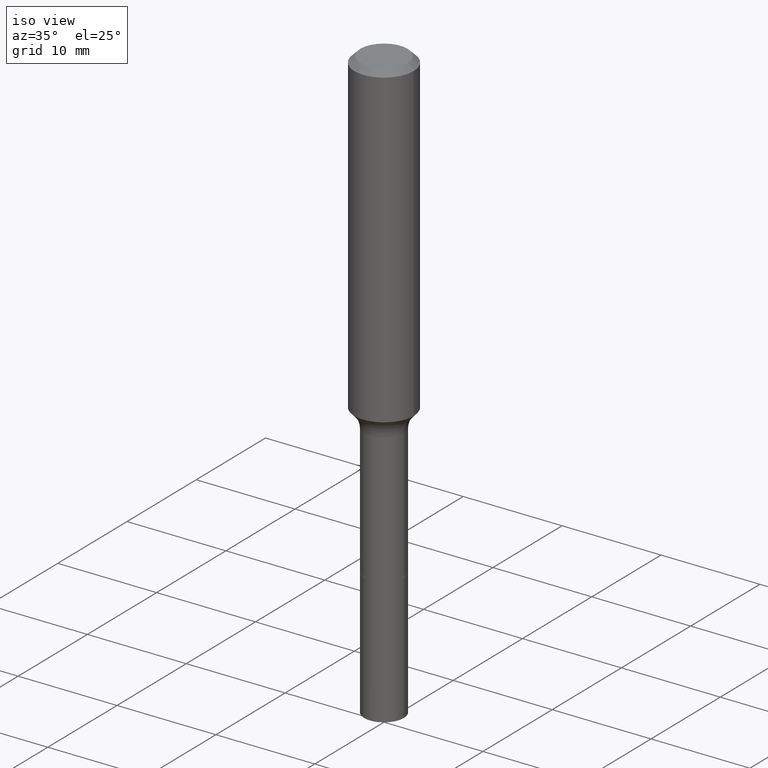
[diagram: clean part render]
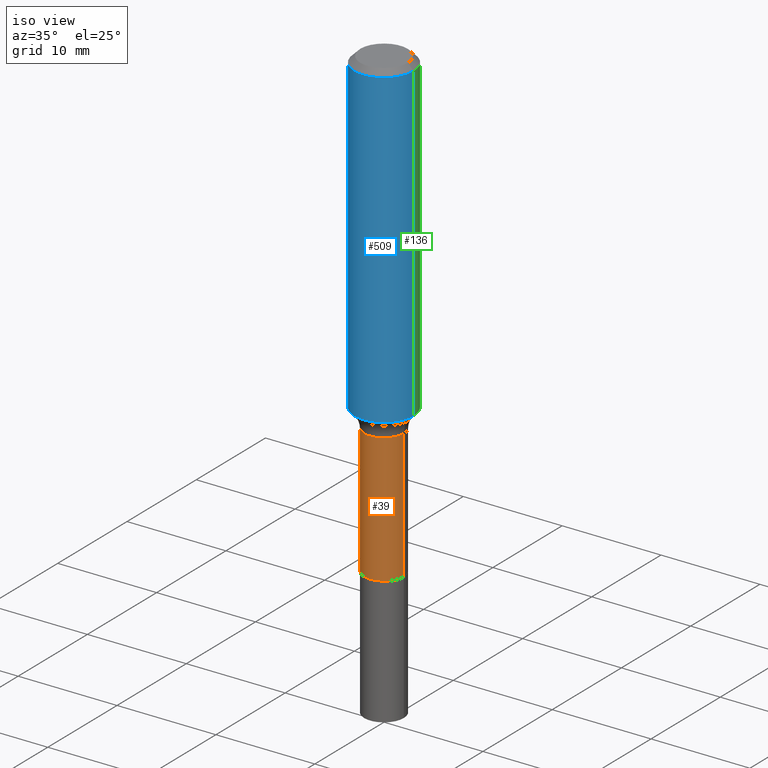
[diagram: same view with three faces highlighted in distinct colors, each labeled with its STEP entity id]
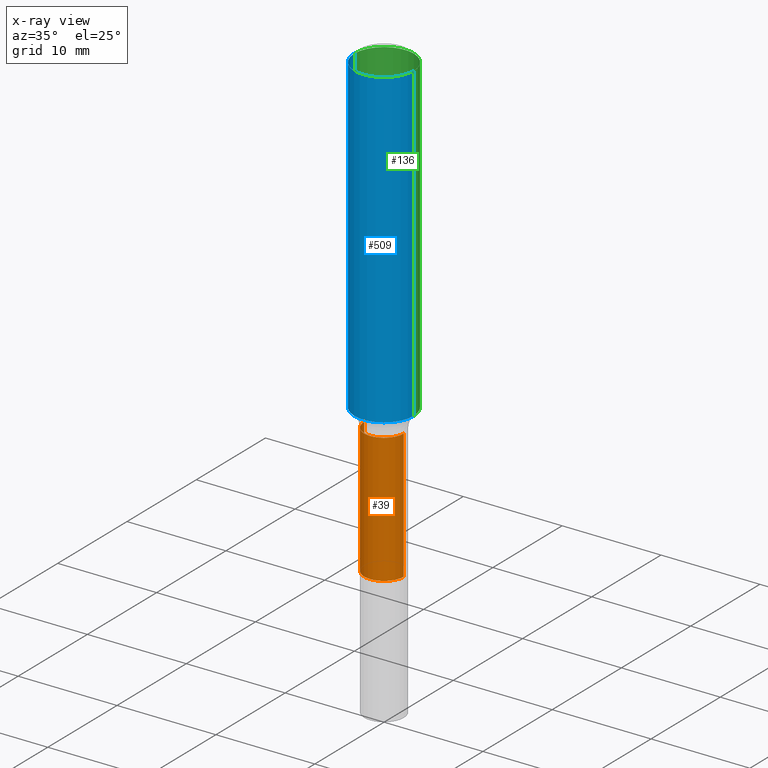
[diagram: x-ray of the same camera — body ghosted, the three highlighted faces saturated]
A machine part, iso view with three faces highlighted in distinct colors.
The next image is the same camera in x-ray (body ghosted, the three faces saturated) — at least one of them is partly hidden behind the body in this view.
Their STEP definitions:

[orange] entity #39 — the highlighted cylindrical surface (edge-blend (fillet) strip) has radius 2.0002 mm, axis along (-0, 0, 1).
#1 = ORIENTED_EDGE ( 'NONE', *, *, #395, .T. ) ;
#6 = DIRECTION ( 'NONE',  ( -2.445468806185136597E-29, 3.491481338843145583E-15, 1.000000000000000000 ) ) ;
#20 = AXIS2_PLACEMENT_3D ( 'NONE', #41, #235, #472 ) ;
#25 = VERTEX_POINT ( 'NONE', #310 ) ;
#39 = ADVANCED_FACE ( 'NONE', ( #203 ), #345, .T. ) ;
#41 = CARTESIAN_POINT ( 'NONE',  ( 0.000000000000000000, 0.000000000000000000, 0.000000000000000000 ) ) ;
#43 = ORIENTED_EDGE ( 'NONE', *, *, #482, .F. ) ;
#45 = CARTESIAN_POINT ( 'NONE',  ( -0.07874999999999994504, 5.595524044110785059E-16, -3.873661383575735690E-30 ) ) ;
#51 = CARTESIAN_POINT ( 'NONE',  ( 0.07875000000000000056, -7.022067268681332845E-15, -1.853700000000000125 ) ) ;
#59 = ORIENTED_EDGE ( 'NONE', *, *, #292, .F. ) ;
#66 = EDGE_CURVE ( 'NONE', #25, #297, #473, .T. ) ;
#81 = LINE ( 'NONE', #45, #226 ) ;
#94 = DIRECTION ( 'NONE',  ( 1.000000000000000000, -6.982962677686269866E-15, 0.000000000000000000 ) ) ;
#110 = VECTOR ( 'NONE', #127, 39.37007874015748143 ) ;
#127 = DIRECTION ( 'NONE',  ( -2.445468806185136877E-29, 3.491481338843145188E-15, 1.000000000000000000 ) ) ;
#168 = CARTESIAN_POINT ( 'NONE',  ( 0.07874999999999991729, -5.222208638507690091E-15, -1.338200000000000056 ) ) ;
#180 = CARTESIAN_POINT ( 'NONE',  ( 3.272526356436949336E-29, -4.672300327639896745E-15, -1.338200000000000056 ) ) ;
#184 = CIRCLE ( 'NONE', #195, 0.07874999999999991729 ) ;
#195 = AXIS2_PLACEMENT_3D ( 'NONE', #180, #377, #94 ) ;
#203 = FACE_OUTER_BOUND ( 'NONE', #420, .T. ) ;
#226 = VECTOR ( 'NONE', #402, 39.37007874015748143 ) ;
#235 = DIRECTION ( 'NONE',  ( -2.445468806185136597E-29, 3.491481338843145583E-15, 1.000000000000000000 ) ) ;
#268 = VERTEX_POINT ( 'NONE', #168 ) ;
#292 = EDGE_CURVE ( 'NONE', #25, #339, #81, .T. ) ;
#293 = LINE ( 'NONE', #481, #110 ) ;
#297 = VERTEX_POINT ( 'NONE', #51 ) ;
#310 = CARTESIAN_POINT ( 'NONE',  ( -0.07875000000000000056, -5.012677238315638137E-15, -1.853700000000000125 ) ) ;
#317 = AXIS2_PLACEMENT_3D ( 'NONE', #518, #6, #439 ) ;
#339 = VERTEX_POINT ( 'NONE', #445 ) ;
#345 = CYLINDRICAL_SURFACE ( 'NONE', #20, 0.07874999999999994504 ) ;
#377 = DIRECTION ( 'NONE',  ( -2.445468806185136597E-29, 3.491481338843145583E-15, 1.000000000000000000 ) ) ;
#395 = EDGE_CURVE ( 'NONE', #297, #268, #293, .T. ) ;
#402 = DIRECTION ( 'NONE',  ( -2.445468806185136877E-29, 3.491481338843145188E-15, 1.000000000000000000 ) ) ;
#420 = EDGE_LOOP ( 'NONE', ( #59, #437, #1, #43 ) ) ;
#437 = ORIENTED_EDGE ( 'NONE', *, *, #66, .T. ) ;
#439 = DIRECTION ( 'NONE',  ( 1.000000000000000000, -6.982962677686261977E-15, 0.000000000000000000 ) ) ;
#445 = CARTESIAN_POINT ( 'NONE',  ( -0.07874999999999991729, -5.012677238315638926E-15, -1.338200000000000056 ) ) ;
#472 = DIRECTION ( 'NONE',  ( 1.000000000000000000, -6.982962677686266711E-15, 4.876176775795935793E-29 ) ) ;
#473 = CIRCLE ( 'NONE', #317, 0.07875000000000000056 ) ;
#481 = CARTESIAN_POINT ( 'NONE',  ( 0.07874999999999994504, -5.499083108677931485E-16, 3.839989210939296915E-30 ) ) ;
#482 = EDGE_CURVE ( 'NONE', #339, #268, #184, .T. ) ;
#518 = CARTESIAN_POINT ( 'NONE',  ( 4.533165526025388314E-29, -6.472158957813539500E-15, -1.853700000000000125 ) ) ;

[blue] entity #509 — the highlighted cylindrical surface (edge-blend (fillet) strip) has radius 2.9997 mm, axis along (-0, 0, 1).
#10 = EDGE_CURVE ( 'NONE', #408, #178, #84, .T. ) ;
#29 = CARTESIAN_POINT ( 'NONE',  ( 0.1180999999999999966, -9.071566814582237199E-16, -0.02362000000000014435 ) ) ;
#30 = EDGE_CURVE ( 'NONE', #508, #135, #196, .T. ) ;
#34 = DIRECTION ( 'NONE',  ( 1.000000000000000000, -6.982962677686264344E-15, 0.000000000000000000 ) ) ;
#36 = DIRECTION ( 'NONE',  ( -2.445468806185136597E-29, 3.491481338843145583E-15, 1.000000000000000000 ) ) ;
#46 = DIRECTION ( 'NONE',  ( -2.445468806185136877E-29, 3.491481338843145188E-15, 1.000000000000000000 ) ) ;
#52 = CIRCLE ( 'NONE', #511, 0.1181000000000001493 ) ;
#63 = VECTOR ( 'NONE', #161, 39.37007874015748143 ) ;
#72 = EDGE_CURVE ( 'NONE', #508, #408, #52, .T. ) ;
#84 = LINE ( 'NONE', #434, #63 ) ;
#97 = DIRECTION ( 'NONE',  ( 1.000000000000000000, -6.982962677686266711E-15, 4.876176775795936353E-29 ) ) ;
#135 = VERTEX_POINT ( 'NONE', #189 ) ;
#145 = EDGE_LOOP ( 'NONE', ( #187, #352, #341, #179 ) ) ;
#146 = CARTESIAN_POINT ( 'NONE',  ( 5.776197320209328408E-31, -8.246878922347560526E-17, -0.02362000000000014435 ) ) ;
#156 = CARTESIAN_POINT ( 'NONE',  ( 3.092269513578415499E-29, -4.414941329051343156E-15, -1.264489453211333325 ) ) ;
#161 = DIRECTION ( 'NONE',  ( -2.445468806185136877E-29, 3.491481338843145188E-15, 1.000000000000000000 ) ) ;
#172 = VECTOR ( 'NONE', #46, 39.37007874015748143 ) ;
#178 = VERTEX_POINT ( 'NONE', #29 ) ;
#179 = ORIENTED_EDGE ( 'NONE', *, *, #232, .F. ) ;
#187 = ORIENTED_EDGE ( 'NONE', *, *, #30, .F. ) ;
#189 = CARTESIAN_POINT ( 'NONE',  ( -0.1180999999999999966, -1.409554088204729926E-15, -0.02362000000000014435 ) ) ;
#196 = LINE ( 'NONE', #469, #172 ) ;
#217 = CARTESIAN_POINT ( 'NONE',  ( -0.1181000000000001493, -3.575790358118663381E-15, -1.264489453211333325 ) ) ;
#219 = AXIS2_PLACEMENT_3D ( 'NONE', #418, #460, #97 ) ;
#232 = EDGE_CURVE ( 'NONE', #135, #178, #250, .T. ) ;
#234 = AXIS2_PLACEMENT_3D ( 'NONE', #146, #306, #424 ) ;
#250 = CIRCLE ( 'NONE', #234, 0.1180999999999999966 ) ;
#285 = CARTESIAN_POINT ( 'NONE',  ( 0.1181000000000001493, -5.239629221286092997E-15, -1.264489453211333325 ) ) ;
#306 = DIRECTION ( 'NONE',  ( -2.445468806185136597E-29, 3.491481338843145583E-15, 1.000000000000000000 ) ) ;
#341 = ORIENTED_EDGE ( 'NONE', *, *, #10, .T. ) ;
#352 = ORIENTED_EDGE ( 'NONE', *, *, #72, .T. ) ;
#406 = CYLINDRICAL_SURFACE ( 'NONE', #219, 0.1181000000000000660 ) ;
#408 = VERTEX_POINT ( 'NONE', #285 ) ;
#418 = CARTESIAN_POINT ( 'NONE',  ( 0.000000000000000000, 0.000000000000000000, 0.000000000000000000 ) ) ;
#424 = DIRECTION ( 'NONE',  ( 1.000000000000000000, -6.982962677686266711E-15, 0.000000000000000000 ) ) ;
#434 = CARTESIAN_POINT ( 'NONE',  ( 0.1181000000000000660, -8.246878922347485584E-16, 5.758764772215003944E-30 ) ) ;
#454 = FACE_OUTER_BOUND ( 'NONE', #145, .T. ) ;
#460 = DIRECTION ( 'NONE',  ( -2.445468806185136597E-29, 3.491481338843145583E-15, 1.000000000000000000 ) ) ;
#469 = CARTESIAN_POINT ( 'NONE',  ( -0.1181000000000000660, 8.391509709326787887E-16, -5.809262341591047287E-30 ) ) ;
#508 = VERTEX_POINT ( 'NONE', #217 ) ;
#509 = ADVANCED_FACE ( 'NONE', ( #454 ), #406, .T. ) ;
#511 = AXIS2_PLACEMENT_3D ( 'NONE', #156, #36, #34 ) ;

[green] entity #136 — the highlighted cylindrical surface (edge-blend (fillet) strip) has radius 2.9997 mm, axis along (-0, 0, 1).
#10 = EDGE_CURVE ( 'NONE', #408, #178, #84, .T. ) ;
#29 = CARTESIAN_POINT ( 'NONE',  ( 0.1180999999999999966, -9.071566814582237199E-16, -0.02362000000000014435 ) ) ;
#30 = EDGE_CURVE ( 'NONE', #508, #135, #196, .T. ) ;
#46 = DIRECTION ( 'NONE',  ( -2.445468806185136877E-29, 3.491481338843145188E-15, 1.000000000000000000 ) ) ;
#63 = VECTOR ( 'NONE', #161, 39.37007874015748143 ) ;
#83 = CARTESIAN_POINT ( 'NONE',  ( 0.000000000000000000, 0.000000000000000000, 0.000000000000000000 ) ) ;
#84 = LINE ( 'NONE', #434, #63 ) ;
#114 = DIRECTION ( 'NONE',  ( 1.000000000000000000, -6.982962677686264344E-15, 0.000000000000000000 ) ) ;
#117 = DIRECTION ( 'NONE',  ( -2.445468806185136597E-29, 3.491481338843145583E-15, 1.000000000000000000 ) ) ;
#134 = AXIS2_PLACEMENT_3D ( 'NONE', #83, #117, #274 ) ;
#135 = VERTEX_POINT ( 'NONE', #189 ) ;
#136 = ADVANCED_FACE ( 'NONE', ( #216 ), #255, .T. ) ;
#154 = EDGE_LOOP ( 'NONE', ( #259, #302, #304, #505 ) ) ;
#161 = DIRECTION ( 'NONE',  ( -2.445468806185136877E-29, 3.491481338843145188E-15, 1.000000000000000000 ) ) ;
#172 = VECTOR ( 'NONE', #46, 39.37007874015748143 ) ;
#178 = VERTEX_POINT ( 'NONE', #29 ) ;
#181 = EDGE_CURVE ( 'NONE', #408, #508, #264, .T. ) ;
#189 = CARTESIAN_POINT ( 'NONE',  ( -0.1180999999999999966, -1.409554088204729926E-15, -0.02362000000000014435 ) ) ;
#196 = LINE ( 'NONE', #469, #172 ) ;
#216 = FACE_OUTER_BOUND ( 'NONE', #154, .T. ) ;
#217 = CARTESIAN_POINT ( 'NONE',  ( -0.1181000000000001493, -3.575790358118663381E-15, -1.264489453211333325 ) ) ;
#242 = AXIS2_PLACEMENT_3D ( 'NONE', #309, #347, #114 ) ;
#255 = CYLINDRICAL_SURFACE ( 'NONE', #134, 0.1181000000000000660 ) ;
#259 = ORIENTED_EDGE ( 'NONE', *, *, #181, .T. ) ;
#264 = CIRCLE ( 'NONE', #242, 0.1181000000000001493 ) ;
#274 = DIRECTION ( 'NONE',  ( 1.000000000000000000, -6.982962677686266711E-15, 4.876176775795936353E-29 ) ) ;
#285 = CARTESIAN_POINT ( 'NONE',  ( 0.1181000000000001493, -5.239629221286092997E-15, -1.264489453211333325 ) ) ;
#299 = EDGE_CURVE ( 'NONE', #178, #135, #387, .T. ) ;
#302 = ORIENTED_EDGE ( 'NONE', *, *, #30, .T. ) ;
#304 = ORIENTED_EDGE ( 'NONE', *, *, #299, .F. ) ;
#309 = CARTESIAN_POINT ( 'NONE',  ( 3.092269513578415499E-29, -4.414941329051343156E-15, -1.264489453211333325 ) ) ;
#315 = DIRECTION ( 'NONE',  ( 1.000000000000000000, -6.982962677686266711E-15, 0.000000000000000000 ) ) ;
#347 = DIRECTION ( 'NONE',  ( -2.445468806185136597E-29, 3.491481338843145583E-15, 1.000000000000000000 ) ) ;
#355 = AXIS2_PLACEMENT_3D ( 'NONE', #364, #359, #315 ) ;
#359 = DIRECTION ( 'NONE',  ( -2.445468806185136597E-29, 3.491481338843145583E-15, 1.000000000000000000 ) ) ;
#364 = CARTESIAN_POINT ( 'NONE',  ( 5.776197320209328408E-31, -8.246878922347560526E-17, -0.02362000000000014435 ) ) ;
#387 = CIRCLE ( 'NONE', #355, 0.1180999999999999966 ) ;
#408 = VERTEX_POINT ( 'NONE', #285 ) ;
#434 = CARTESIAN_POINT ( 'NONE',  ( 0.1181000000000000660, -8.246878922347485584E-16, 5.758764772215003944E-30 ) ) ;
#469 = CARTESIAN_POINT ( 'NONE',  ( -0.1181000000000000660, 8.391509709326787887E-16, -5.809262341591047287E-30 ) ) ;
#505 = ORIENTED_EDGE ( 'NONE', *, *, #10, .F. ) ;
#508 = VERTEX_POINT ( 'NONE', #217 ) ;